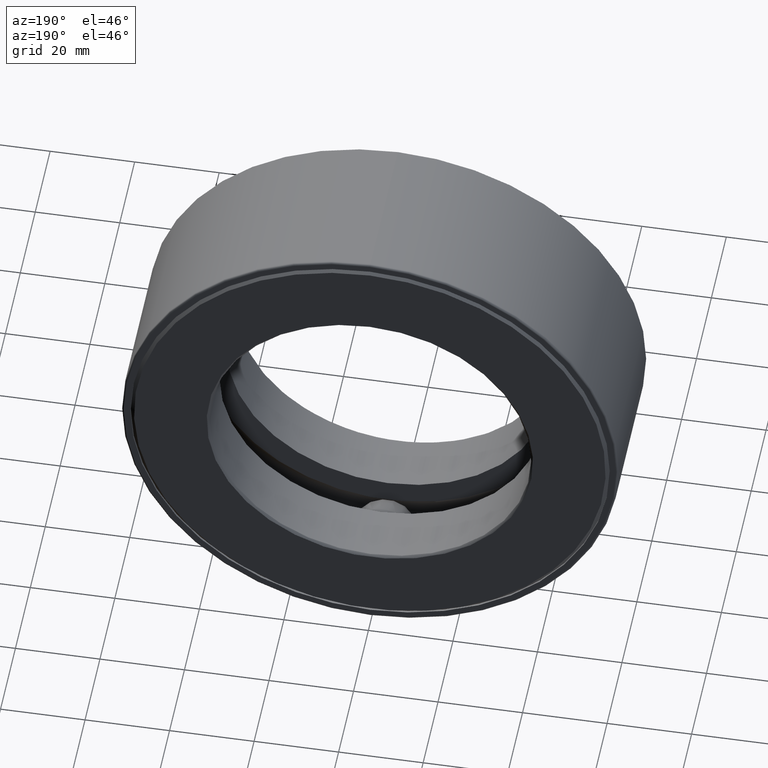
[diagram: clean part render]
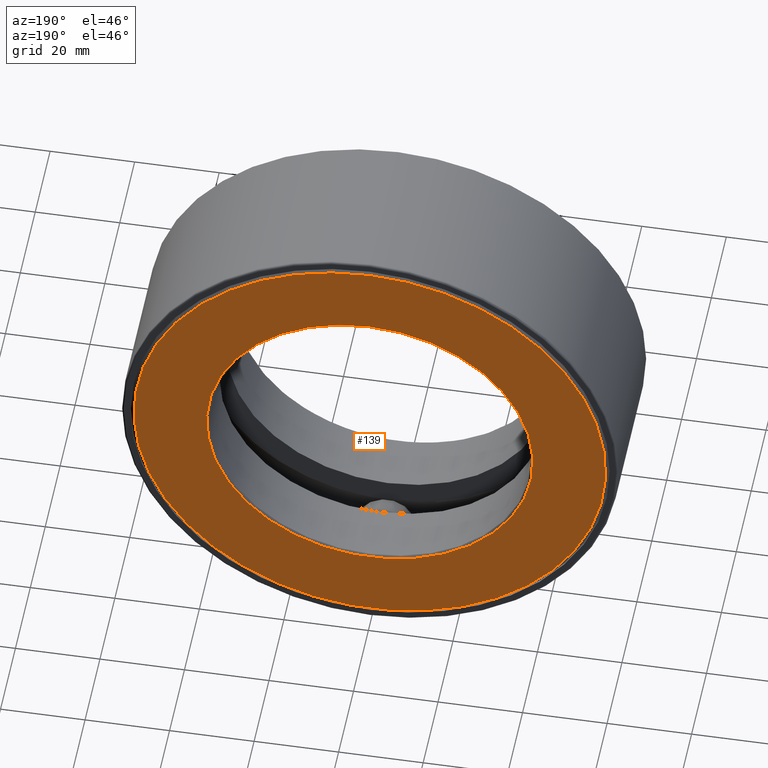
[diagram: same view with one face highlighted and labeled with its STEP entity id]
A machine part, auxiliary view. The second image highlights one B-rep face of the part: STEP entity #139.
In plain terms, the highlighted planar face has unit normal (-0, 1, 0).
Its self-contained STEP definition (entity closure, byte-faithful):
#21 = PLANE ( 'NONE',  #112 ) ;
#36 = CARTESIAN_POINT ( 'NONE',  ( 0.0000000000000000000, 1.500000000000000200, 2.197499999999999800 ) ) ;
#63 = ORIENTED_EDGE ( 'NONE', *, *, #396, .T. ) ;
#72 = DIRECTION ( 'NONE',  ( 0.0000000000000000000, 0.0000000000000000000, 1.000000000000000000 ) ) ;
#80 = CARTESIAN_POINT ( 'NONE',  ( 0.0000000000000000000, 1.500000000000000200, 1.520000000000000500 ) ) ;
#85 = VERTEX_POINT ( 'NONE', #80 ) ;
#93 = DIRECTION ( 'NONE',  ( -0.0000000000000000000, 1.000000000000000000, -0.0000000000000000000 ) ) ;
#110 = CIRCLE ( 'NONE', #197, 2.197499999999999800 ) ;
#112 = AXIS2_PLACEMENT_3D ( 'NONE', #526, #301, #72 ) ;
#139 = ADVANCED_FACE ( 'NONE', ( #298, #382 ), #21, .T. ) ;
#197 = AXIS2_PLACEMENT_3D ( 'NONE', #361, #596, #225 ) ;
#225 = DIRECTION ( 'NONE',  ( 0.0000000000000000000, 0.0000000000000000000, 1.000000000000000000 ) ) ;
#227 = CARTESIAN_POINT ( 'NONE',  ( 0.0000000000000000000, 1.500000000000000200, 0.0000000000000000000 ) ) ;
#248 = ORIENTED_EDGE ( 'NONE', *, *, #408, .F. ) ;
#253 = AXIS2_PLACEMENT_3D ( 'NONE', #227, #93, #494 ) ;
#283 = CIRCLE ( 'NONE', #253, 1.520000000000000500 ) ;
#291 = VERTEX_POINT ( 'NONE', #36 ) ;
#298 = FACE_OUTER_BOUND ( 'NONE', #386, .T. ) ;
#301 = DIRECTION ( 'NONE',  ( -0.0000000000000000000, 1.000000000000000000, 0.0000000000000000000 ) ) ;
#330 = EDGE_LOOP ( 'NONE', ( #248 ) ) ;
#361 = CARTESIAN_POINT ( 'NONE',  ( 0.0000000000000000000, 1.500000000000000200, 0.0000000000000000000 ) ) ;
#382 = FACE_BOUND ( 'NONE', #330, .T. ) ;
#386 = EDGE_LOOP ( 'NONE', ( #63 ) ) ;
#396 = EDGE_CURVE ( 'NONE', #291, #291, #110, .T. ) ;
#408 = EDGE_CURVE ( 'NONE', #85, #85, #283, .T. ) ;
#494 = DIRECTION ( 'NONE',  ( 0.0000000000000000000, 0.0000000000000000000, 1.000000000000000000 ) ) ;
#526 = CARTESIAN_POINT ( 'NONE',  ( 0.0000000000000000000, 1.500000000000000200, 0.0000000000000000000 ) ) ;
#596 = DIRECTION ( 'NONE',  ( -0.0000000000000000000, 1.000000000000000000, -0.0000000000000000000 ) ) ;